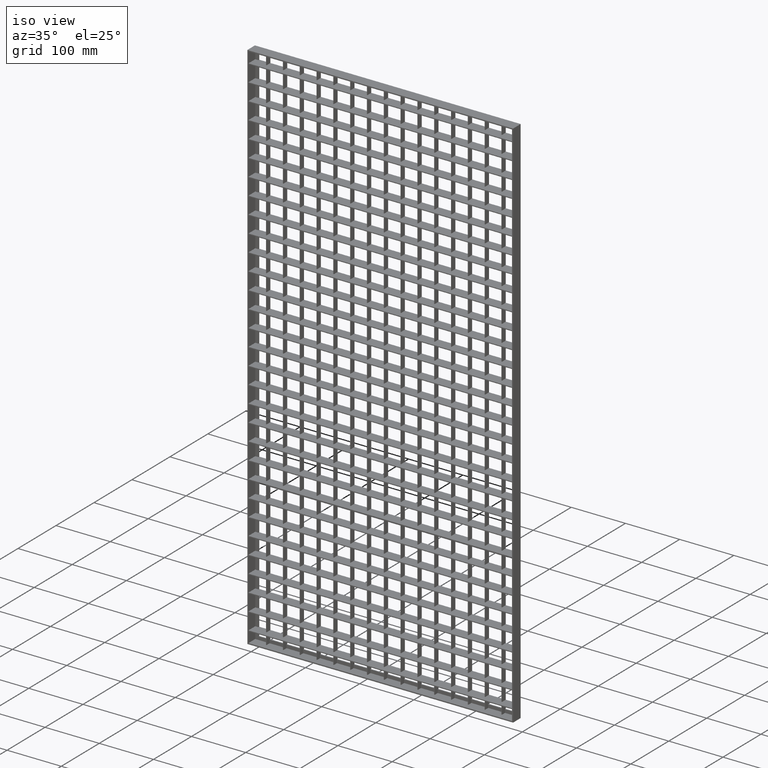
[diagram: clean part render]
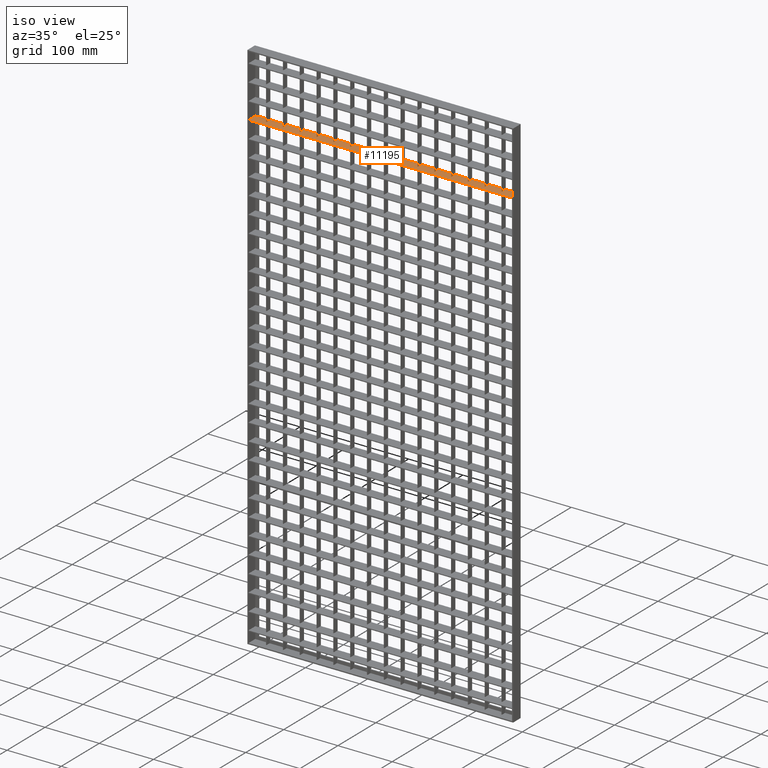
[diagram: same view with one face highlighted and labeled with its STEP entity id]
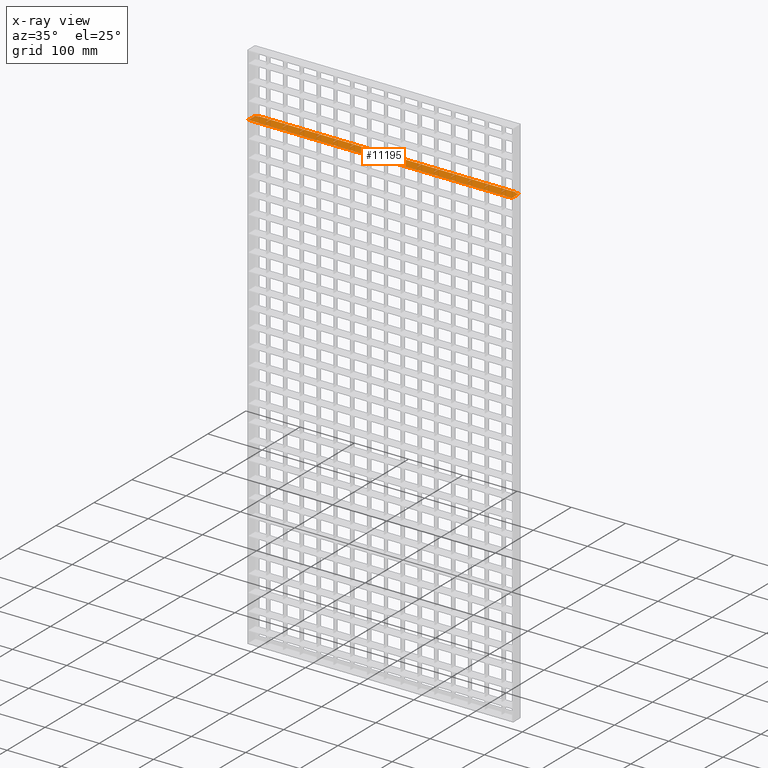
[diagram: x-ray of the same camera — body ghosted, the highlighted face saturated]
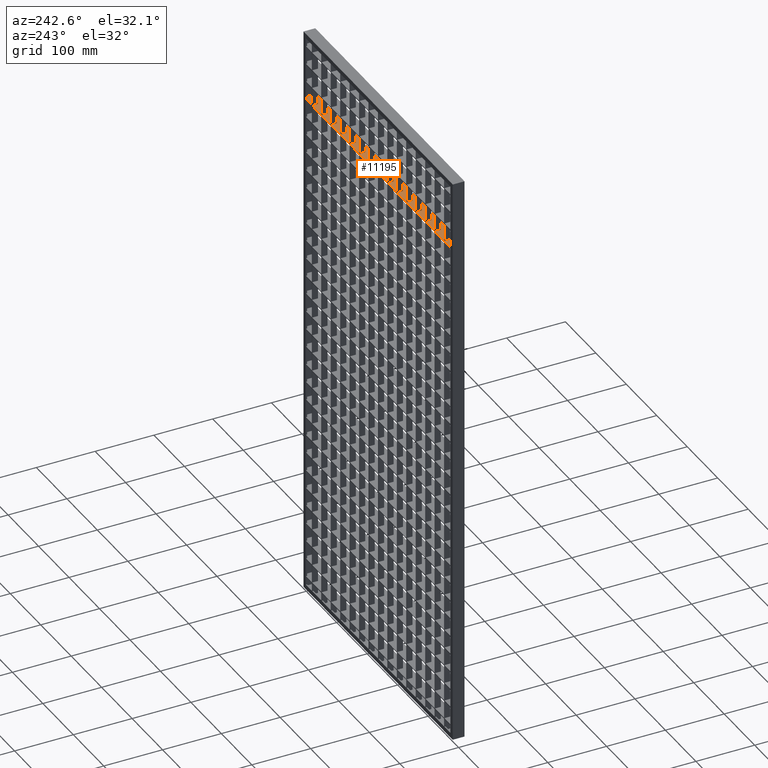
[diagram: same view with one face highlighted and labeled with its STEP entity id]
A machine part, iso view. The second image highlights one B-rep face of the part: STEP entity #11195.
The next image is the same camera in x-ray: the body ghosted, the highlighted face saturated — about 0% of this face is hidden behind the body in this view.
A second angle (auxiliary view) of the same face is appended — the face is thin or edge-on in the first view.
In plain terms, the highlighted planar face has unit normal (0, 0, 1).
Its self-contained STEP definition (entity closure, byte-faithful):
#66 = LINE ( 'NONE', #1352, #61091 ) ;
#96 = LINE ( 'NONE', #55227, #38775 ) ;
#154 = EDGE_CURVE ( 'NONE', #3011, #3247, #58963, .T. ) ;
#226 = CARTESIAN_POINT ( 'NONE',  ( 337.5000000000000000, -9.999999999999849000, -116.2500000000001800 ) ) ;
#285 = CARTESIAN_POINT ( 'NONE',  ( 488.0000000000001100, -9.999999999999849000, -116.2500000000001800 ) ) ;
#354 = EDGE_CURVE ( 'NONE', #33933, #38068, #47777, .T. ) ;
#404 = CARTESIAN_POINT ( 'NONE',  ( 214.5000000000000300, -9.999999999999849000, -116.2500000000001800 ) ) ;
#761 = LINE ( 'NONE', #40805, #28284 ) ;
#849 = VERTEX_POINT ( 'NONE', #18802 ) ;
#1001 = VERTEX_POINT ( 'NONE', #25924 ) ;
#1289 = LINE ( 'NONE', #62619, #35708 ) ;
#1352 = CARTESIAN_POINT ( 'NONE',  ( 306.5000000000000000, -9.999999999999849000, -116.2500000000001800 ) ) ;
#1355 = VERTEX_POINT ( 'NONE', #66775 ) ;
#1635 = CARTESIAN_POINT ( 'NONE',  ( 430.5000000000000000, -9.999999999999849000, -116.2500000000001800 ) ) ;
#1902 = DIRECTION ( 'NONE',  ( -1.000000000000000000, -3.061616997868382600E-016, 0.0000000000000000000 ) ) ;
#1916 = VERTEX_POINT ( 'NONE', #7220 ) ;
#1917 = VECTOR ( 'NONE', #39881, 1000.000000000000000 ) ;
#1993 = CARTESIAN_POINT ( 'NONE',  ( 307.5000000000000000, 10.00000000000000200, -116.2500000000004100 ) ) ;
#2297 = VERTEX_POINT ( 'NONE', #70636 ) ;
#2717 = VECTOR ( 'NONE', #5899, 1000.000000000000000 ) ;
#2776 = CARTESIAN_POINT ( 'NONE',  ( 338.5000000000000000, 1.923612492644616800E-015, -116.2500000000004100 ) ) ;
#2880 = DIRECTION ( 'NONE',  ( 0.0000000000000000000, -1.000000000000000000, 0.0000000000000000000 ) ) ;
#3011 = VERTEX_POINT ( 'NONE', #34235 ) ;
#3160 = VECTOR ( 'NONE', #12920, 1000.000000000000000 ) ;
#3240 = DIRECTION ( 'NONE',  ( -1.000000000000000000, 0.0000000000000000000, 0.0000000000000000000 ) ) ;
#3247 = VERTEX_POINT ( 'NONE', #25079 ) ;
#3488 = ORIENTED_EDGE ( 'NONE', *, *, #53635, .T. ) ;
#3531 = DIRECTION ( 'NONE',  ( 1.000000000000000000, 3.061616997868381700E-016, -0.0000000000000000000 ) ) ;
#3753 = CARTESIAN_POINT ( 'NONE',  ( 399.4999999999999400, 10.00000000000012100, -116.2500000000001800 ) ) ;
#3786 = CARTESIAN_POINT ( 'NONE',  ( 90.50000000000002800, 10.00000000000002700, -116.2500000000001800 ) ) ;
#3804 = CARTESIAN_POINT ( 'NONE',  ( 2.000000000000001800, -10.00000000000000400, -116.2500000000001800 ) ) ;
#4022 = EDGE_CURVE ( 'NONE', #25722, #1001, #40357, .T. ) ;
#4027 = ORIENTED_EDGE ( 'NONE', *, *, #32074, .T. ) ;
#4175 = CARTESIAN_POINT ( 'NONE',  ( 430.5000000000000000, 2.229774192431455100E-015, -116.2500000000001800 ) ) ;
#4298 = VECTOR ( 'NONE', #69806, 1000.000000000000000 ) ;
#4321 = EDGE_CURVE ( 'NONE', #41509, #849, #57528, .T. ) ;
#4322 = EDGE_CURVE ( 'NONE', #59685, #13925, #761, .T. ) ;
#4414 = VERTEX_POINT ( 'NONE', #65220 ) ;
#4528 = LINE ( 'NONE', #21115, #54399 ) ;
#5039 = VECTOR ( 'NONE', #5463, 1000.000000000000000 ) ;
#5065 = CARTESIAN_POINT ( 'NONE',  ( 275.4999999999999400, 10.00000000000008300, -116.2500000000001800 ) ) ;
#5176 = ORIENTED_EDGE ( 'NONE', *, *, #24452, .T. ) ;
#5246 = VERTEX_POINT ( 'NONE', #62007 ) ;
#5281 = CARTESIAN_POINT ( 'NONE',  ( 151.4999999999999700, -9.999999999999849000, -116.2500000000001800 ) ) ;
#5368 = EDGE_CURVE ( 'NONE', #1001, #17634, #28168, .T. ) ;
#5463 = DIRECTION ( 'NONE',  ( -1.000000000000000000, 3.061616997868381700E-016, 0.0000000000000000000 ) ) ;
#5499 = CARTESIAN_POINT ( 'NONE',  ( 307.5000000000000000, 1.923612492644616800E-015, -116.2500000000004100 ) ) ;
#5652 = VECTOR ( 'NONE', #48286, 1000.000000000000000 ) ;
#5875 = ORIENTED_EDGE ( 'NONE', *, *, #354, .F. ) ;
#5899 = DIRECTION ( 'NONE',  ( 0.0000000000000000000, -1.000000000000000000, 0.0000000000000000000 ) ) ;
#5962 = DIRECTION ( 'NONE',  ( 0.0000000000000000000, 0.0000000000000000000, 1.000000000000000000 ) ) ;
#6363 = DIRECTION ( 'NONE',  ( -1.000000000000000000, -3.061616997868382600E-016, 0.0000000000000000000 ) ) ;
#6431 = VECTOR ( 'NONE', #70868, 1000.000000000000000 ) ;
#6518 = VERTEX_POINT ( 'NONE', #48362 ) ;
#6537 = CARTESIAN_POINT ( 'NONE',  ( 306.5000000000000000, 10.00000000000009200, -116.2500000000001800 ) ) ;
#6709 = DIRECTION ( 'NONE',  ( -1.000000000000000000, 3.061616997868381200E-016, 0.0000000000000000000 ) ) ;
#7109 = CARTESIAN_POINT ( 'NONE',  ( 276.4999999999999400, -9.999999999999849000, -116.2500000000001800 ) ) ;
#7220 = CARTESIAN_POINT ( 'NONE',  ( 28.50000000000002500, 10.00000000000000700, -116.2500000000001800 ) ) ;
#7403 = DIRECTION ( 'NONE',  ( 1.000000000000000000, 3.061616997868381200E-016, -0.0000000000000000000 ) ) ;
#7412 = EDGE_CURVE ( 'NONE', #44917, #14105, #35719, .T. ) ;
#7444 = CARTESIAN_POINT ( 'NONE',  ( 307.5000000000000000, -9.999999999999849000, -116.2500000000001800 ) ) ;
#7744 = ORIENTED_EDGE ( 'NONE', *, *, #43467, .F. ) ;
#7939 = VERTEX_POINT ( 'NONE', #24346 ) ;
#7989 = CARTESIAN_POINT ( 'NONE',  ( 89.50000000000000000, 10.00000000000000200, -116.2500000000001800 ) ) ;
#8013 = VECTOR ( 'NONE', #2880, 1000.000000000000000 ) ;
#8253 = VERTEX_POINT ( 'NONE', #5499 ) ;
#8380 = CARTESIAN_POINT ( 'NONE',  ( 245.5000000000000000, 10.00000000000007500, -116.2500000000001800 ) ) ;
#8395 = CARTESIAN_POINT ( 'NONE',  ( 508.0561711201316900, 10.00000000000015500, -116.2500000000001800 ) ) ;
#8545 = ORIENTED_EDGE ( 'NONE', *, *, #29519, .F. ) ;
#8560 = LINE ( 'NONE', #33262, #15452 ) ;
#8620 = VECTOR ( 'NONE', #55979, 1000.000000000000000 ) ;
#8635 = CARTESIAN_POINT ( 'NONE',  ( 244.5000000000000000, 10.00000000000000200, -116.2500000000004100 ) ) ;
#8644 = VERTEX_POINT ( 'NONE', #8380 ) ;
#8888 = VECTOR ( 'NONE', #26855, 1000.000000000000000 ) ;
#8961 = VERTEX_POINT ( 'NONE', #49169 ) ;
#8966 = CARTESIAN_POINT ( 'NONE',  ( 338.5000000000000000, 10.00000000000000200, -116.2500000000004100 ) ) ;
#8995 = EDGE_CURVE ( 'NONE', #34004, #45563, #37981, .T. ) ;
#9236 = VECTOR ( 'NONE', #23827, 1000.000000000000000 ) ;
#9242 = LINE ( 'NONE', #70820, #48805 ) ;
#9249 = DIRECTION ( 'NONE',  ( 0.0000000000000000000, -1.000000000000000000, 0.0000000000000000000 ) ) ;
#9516 = DIRECTION ( 'NONE',  ( -1.000000000000000000, 3.061616997868381700E-016, 0.0000000000000000000 ) ) ;
#9560 = VERTEX_POINT ( 'NONE', #1993 ) ;
#9592 = DIRECTION ( 'NONE',  ( -1.000000000000000000, 0.0000000000000000000, 0.0000000000000000000 ) ) ;
#9722 = LINE ( 'NONE', #56500, #19218 ) ;
#9756 = VERTEX_POINT ( 'NONE', #7989 ) ;
#9794 = VECTOR ( 'NONE', #40021, 1000.000000000000000 ) ;
#9856 = ORIENTED_EDGE ( 'NONE', *, *, #28978, .T. ) ;
#9950 = VECTOR ( 'NONE', #22806, 1000.000000000000000 ) ;
#10018 = CARTESIAN_POINT ( 'NONE',  ( 245.5000000000000000, 1.734723475976807100E-015, -116.2500000000001800 ) ) ;
#10086 = LINE ( 'NONE', #285, #28972 ) ;
#10484 = CARTESIAN_POINT ( 'NONE',  ( 28.49999999999997200, 1.734723475976807100E-015, -116.2500000000001800 ) ) ;
#10709 = DIRECTION ( 'NONE',  ( 1.000000000000000000, 3.061616997868381200E-016, -0.0000000000000000000 ) ) ;
#10721 = DIRECTION ( 'NONE',  ( -0.0000000000000000000, -1.000000000000000000, 0.0000000000000000000 ) ) ;
#10842 = CARTESIAN_POINT ( 'NONE',  ( 368.5000000000000600, 10.00000000000011200, -116.2500000000001800 ) ) ;
#11003 = CARTESIAN_POINT ( 'NONE',  ( 508.0561711201316900, 10.00000000000015500, -116.2500000000001800 ) ) ;
#11017 = CARTESIAN_POINT ( 'NONE',  ( 508.0561711201316900, 1.491862189340054100E-013, -116.2500000000001800 ) ) ;
#11195 = ADVANCED_FACE ( 'NONE', ( #47107 ), #71369, .T. ) ;
#11368 = CARTESIAN_POINT ( 'NONE',  ( 368.5000000000000600, 2.229774192431455100E-015, -116.2500000000004100 ) ) ;
#11381 = DIRECTION ( 'NONE',  ( 0.0000000000000000000, -1.000000000000000000, 0.0000000000000000000 ) ) ;
#11609 = LINE ( 'NONE', #43200, #6431 ) ;
#11745 = DIRECTION ( 'NONE',  ( 1.000000000000000000, 3.061616997868381700E-016, -0.0000000000000000000 ) ) ;
#12221 = VECTOR ( 'NONE', #46309, 1000.000000000000000 ) ;
#12293 = ORIENTED_EDGE ( 'NONE', *, *, #65976, .T. ) ;
#12335 = ORIENTED_EDGE ( 'NONE', *, *, #28984, .T. ) ;
#12539 = ORIENTED_EDGE ( 'NONE', *, *, #7412, .T. ) ;
#12554 = DIRECTION ( 'NONE',  ( 0.0000000000000000000, -1.000000000000000000, 0.0000000000000000000 ) ) ;
#12819 = VERTEX_POINT ( 'NONE', #21442 ) ;
#12849 = DIRECTION ( 'NONE',  ( -0.0000000000000000000, 1.000000000000000000, 0.0000000000000000000 ) ) ;
#12920 = DIRECTION ( 'NONE',  ( -1.000000000000000000, -3.061616997868382600E-016, 0.0000000000000000000 ) ) ;
#12991 = CARTESIAN_POINT ( 'NONE',  ( 508.0561711201316900, -9.999999999999849000, -116.2500000000001800 ) ) ;
#12998 = CARTESIAN_POINT ( 'NONE',  ( 182.5000000000000000, 10.00000000000000200, -116.2500000000004100 ) ) ;
#13309 = ORIENTED_EDGE ( 'NONE', *, *, #69955, .F. ) ;
#13475 = CARTESIAN_POINT ( 'NONE',  ( 431.5000000000000000, -9.999999999999849000, -116.2500000000001800 ) ) ;
#13503 = VECTOR ( 'NONE', #49704, 1000.000000000000000 ) ;
#13518 = EDGE_CURVE ( 'NONE', #16266, #47125, #60110, .T. ) ;
#13719 = CARTESIAN_POINT ( 'NONE',  ( 28.49999999999997200, -9.999999999999849000, -116.2500000000001800 ) ) ;
#13925 = VERTEX_POINT ( 'NONE', #58303 ) ;
#13988 = VERTEX_POINT ( 'NONE', #20113 ) ;
#14105 = VERTEX_POINT ( 'NONE', #37132 ) ;
#15046 = VECTOR ( 'NONE', #11381, 1000.000000000000000 ) ;
#15452 = VECTOR ( 'NONE', #38299, 1000.000000000000000 ) ;
#15814 = VECTOR ( 'NONE', #52410, 1000.000000000000000 ) ;
#16179 = ORIENTED_EDGE ( 'NONE', *, *, #50127, .F. ) ;
#16266 = VERTEX_POINT ( 'NONE', #35106 ) ;
#16343 = CARTESIAN_POINT ( 'NONE',  ( 245.5000000000000000, -9.999999999999849000, -116.2500000000001800 ) ) ;
#16642 = DIRECTION ( 'NONE',  ( 0.0000000000000000000, -1.000000000000000000, 0.0000000000000000000 ) ) ;
#16921 = LINE ( 'NONE', #52466, #20358 ) ;
#16922 = EDGE_CURVE ( 'NONE', #38281, #13988, #23416, .T. ) ;
#17318 = ORIENTED_EDGE ( 'NONE', *, *, #61313, .T. ) ;
#17355 = ORIENTED_EDGE ( 'NONE', *, *, #48513, .T. ) ;
#17565 = VECTOR ( 'NONE', #31458, 1000.000000000000000 ) ;
#17634 = VERTEX_POINT ( 'NONE', #41100 ) ;
#17803 = LINE ( 'NONE', #40077, #3160 ) ;
#17875 = ORIENTED_EDGE ( 'NONE', *, *, #26034, .F. ) ;
#18203 = CARTESIAN_POINT ( 'NONE',  ( 59.50000000000000000, 1.734723475976807100E-015, -116.2500000000001800 ) ) ;
#18228 = ORIENTED_EDGE ( 'NONE', *, *, #48355, .T. ) ;
#18289 = VECTOR ( 'NONE', #61457, 1000.000000000000000 ) ;
#18389 = EDGE_CURVE ( 'NONE', #17634, #5246, #29137, .T. ) ;
#18555 = ORIENTED_EDGE ( 'NONE', *, *, #23323, .T. ) ;
#18802 = CARTESIAN_POINT ( 'NONE',  ( 152.5000000000000300, 10.00000000000004600, -116.2500000000001800 ) ) ;
#18990 = LINE ( 'NONE', #27881, #42169 ) ;
#19081 = DIRECTION ( 'NONE',  ( -0.0000000000000000000, 1.000000000000000000, 0.0000000000000000000 ) ) ;
#19088 = LINE ( 'NONE', #35144, #28486 ) ;
#19208 = ORIENTED_EDGE ( 'NONE', *, *, #38122, .T. ) ;
#19218 = VECTOR ( 'NONE', #50527, 1000.000000000000000 ) ;
#19473 = DIRECTION ( 'NONE',  ( -1.000000000000000000, -3.061616997868382600E-016, 0.0000000000000000000 ) ) ;
#19800 = ORIENTED_EDGE ( 'NONE', *, *, #38321, .F. ) ;
#19841 = LINE ( 'NONE', #59295, #64512 ) ;
#19891 = LINE ( 'NONE', #55745, #32533 ) ;
#20113 = CARTESIAN_POINT ( 'NONE',  ( 430.5000000000000000, 10.00000000000013000, -116.2500000000001800 ) ) ;
#20285 = VECTOR ( 'NONE', #3240, 1000.000000000000000 ) ;
#20358 = VECTOR ( 'NONE', #30593, 1000.000000000000000 ) ;
#20380 = CARTESIAN_POINT ( 'NONE',  ( 462.5000000000000000, -9.999999999999849000, -116.2500000000001800 ) ) ;
#20540 = VERTEX_POINT ( 'NONE', #63760 ) ;
#20577 = VECTOR ( 'NONE', #65826, 1000.000000000000000 ) ;
#20736 = LINE ( 'NONE', #46829, #67236 ) ;
#20879 = EDGE_CURVE ( 'NONE', #33315, #40284, #18990, .T. ) ;
#20885 = LINE ( 'NONE', #7109, #37961 ) ;
#21115 = CARTESIAN_POINT ( 'NONE',  ( 121.5000000000000000, -9.999999999999849000, -116.2500000000001800 ) ) ;
#21160 = ORIENTED_EDGE ( 'NONE', *, *, #32296, .T. ) ;
#21382 = DIRECTION ( 'NONE',  ( 1.000000000000000000, 0.0000000000000000000, -0.0000000000000000000 ) ) ;
#21400 = EDGE_CURVE ( 'NONE', #37545, #28957, #24041, .T. ) ;
#21420 = ORIENTED_EDGE ( 'NONE', *, *, #47836, .F. ) ;
#21442 = CARTESIAN_POINT ( 'NONE',  ( 121.5000000000000000, 10.00000000000003700, -116.2500000000001800 ) ) ;
#21633 = CARTESIAN_POINT ( 'NONE',  ( 508.0561711201316900, -9.999999999999849000, -116.2500000000001800 ) ) ;
#21657 = VECTOR ( 'NONE', #6363, 1000.000000000000000 ) ;
#21669 = VERTEX_POINT ( 'NONE', #59554 ) ;
#22037 = LINE ( 'NONE', #31645, #40098 ) ;
#22413 = VECTOR ( 'NONE', #28030, 1000.000000000000000 ) ;
#22806 = DIRECTION ( 'NONE',  ( -0.0000000000000000000, 1.000000000000000000, 0.0000000000000000000 ) ) ;
#23053 = ORIENTED_EDGE ( 'NONE', *, *, #67217, .F. ) ;
#23110 = DIRECTION ( 'NONE',  ( 0.0000000000000000000, -1.000000000000000000, 0.0000000000000000000 ) ) ;
#23250 = LINE ( 'NONE', #42148, #24088 ) ;
#23323 = EDGE_CURVE ( 'NONE', #58364, #25722, #69270, .T. ) ;
#23375 = ORIENTED_EDGE ( 'NONE', *, *, #63979, .F. ) ;
#23416 = LINE ( 'NONE', #1635, #12221 ) ;
#23529 = EDGE_CURVE ( 'NONE', #47807, #12819, #11609, .T. ) ;
#23602 = DIRECTION ( 'NONE',  ( -1.000000000000000000, -3.061616997868382600E-016, 0.0000000000000000000 ) ) ;
#23827 = DIRECTION ( 'NONE',  ( -0.0000000000000000000, 1.000000000000000000, 0.0000000000000000000 ) ) ;
#23867 = CARTESIAN_POINT ( 'NONE',  ( 369.5000000000000600, -9.999999999999849000, -116.2500000000001800 ) ) ;
#23921 = CARTESIAN_POINT ( 'NONE',  ( 90.50000000000002800, -9.999999999999849000, -116.2500000000001800 ) ) ;
#23951 = DIRECTION ( 'NONE',  ( 0.0000000000000000000, -1.000000000000000000, 0.0000000000000000000 ) ) ;
#23960 = DIRECTION ( 'NONE',  ( -0.0000000000000000000, 1.000000000000000000, 0.0000000000000000000 ) ) ;
#24041 = LINE ( 'NONE', #63699, #35189 ) ;
#24088 = VECTOR ( 'NONE', #9249, 1000.000000000000000 ) ;
#24159 = EDGE_CURVE ( 'NONE', #29501, #33933, #19891, .T. ) ;
#24346 = CARTESIAN_POINT ( 'NONE',  ( 151.4999999999999700, 1.858459042889412100E-015, -116.2500000000001800 ) ) ;
#24452 = EDGE_CURVE ( 'NONE', #40692, #25430, #33660, .T. ) ;
#24585 = LINE ( 'NONE', #226, #9950 ) ;
#24702 = EDGE_CURVE ( 'NONE', #25430, #55751, #34465, .T. ) ;
#24706 = VECTOR ( 'NONE', #35953, 1000.000000000000000 ) ;
#24890 = ORIENTED_EDGE ( 'NONE', *, *, #4322, .F. ) ;
#25021 = EDGE_CURVE ( 'NONE', #9560, #8253, #42085, .T. ) ;
#25079 = CARTESIAN_POINT ( 'NONE',  ( 90.50000000000002800, 1.734723475976807100E-015, -116.2500000000001800 ) ) ;
#25430 = VERTEX_POINT ( 'NONE', #71079 ) ;
#25523 = DIRECTION ( 'NONE',  ( 1.000000000000000000, 3.061616997868381200E-016, -0.0000000000000000000 ) ) ;
#25628 = VECTOR ( 'NONE', #37986, 1000.000000000000000 ) ;
#25693 = ORIENTED_EDGE ( 'NONE', *, *, #61186, .F. ) ;
#25722 = VERTEX_POINT ( 'NONE', #41928 ) ;
#25924 = CARTESIAN_POINT ( 'NONE',  ( 482.0000000000002300, 10.00000000000000200, -116.2500000000001800 ) ) ;
#26031 = VECTOR ( 'NONE', #38385, 1000.000000000000000 ) ;
#26034 = EDGE_CURVE ( 'NONE', #55268, #849, #8560, .T. ) ;
#26109 = DIRECTION ( 'NONE',  ( 0.0000000000000000000, -1.000000000000000000, 0.0000000000000000000 ) ) ;
#26315 = ORIENTED_EDGE ( 'NONE', *, *, #24702, .T. ) ;
#26321 = DIRECTION ( 'NONE',  ( -1.000000000000000000, -3.061616997868382600E-016, 0.0000000000000000000 ) ) ;
#26855 = DIRECTION ( 'NONE',  ( -1.000000000000000000, -3.061616997868382600E-016, 0.0000000000000000000 ) ) ;
#26869 = EDGE_CURVE ( 'NONE', #62229, #1916, #47102, .T. ) ;
#26990 = CARTESIAN_POINT ( 'NONE',  ( 508.0561711201316900, 10.00000000000015500, -116.2500000000001800 ) ) ;
#27009 = LINE ( 'NONE', #63548, #63194 ) ;
#27394 = EDGE_CURVE ( 'NONE', #8253, #61614, #16921, .T. ) ;
#27803 = DIRECTION ( 'NONE',  ( -1.000000000000000000, -3.061616997868382600E-016, 0.0000000000000000000 ) ) ;
#27825 = CARTESIAN_POINT ( 'NONE',  ( 58.50000000000000000, 10.00000000000000200, -116.2500000000001800 ) ) ;
#27881 = CARTESIAN_POINT ( 'NONE',  ( 508.0561711201316900, -5.030698080332740600E-014, -116.2500000000001800 ) ) ;
#28030 = DIRECTION ( 'NONE',  ( -0.0000000000000000000, 1.000000000000000000, 0.0000000000000000000 ) ) ;
#28040 = VERTEX_POINT ( 'NONE', #65491 ) ;
#28117 = ORIENTED_EDGE ( 'NONE', *, *, #36528, .F. ) ;
#28168 = LINE ( 'NONE', #29308, #29911 ) ;
#28241 = EDGE_CURVE ( 'NONE', #28515, #33315, #53707, .T. ) ;
#28281 = ORIENTED_EDGE ( 'NONE', *, *, #23529, .T. ) ;
#28284 = VECTOR ( 'NONE', #7403, 1000.000000000000000 ) ;
#28486 = VECTOR ( 'NONE', #19081, 1000.000000000000000 ) ;
#28515 = VERTEX_POINT ( 'NONE', #8966 ) ;
#28542 = LINE ( 'NONE', #33361, #48324 ) ;
#28657 = EDGE_CURVE ( 'NONE', #55751, #8644, #33051, .T. ) ;
#28747 = CARTESIAN_POINT ( 'NONE',  ( 461.5000000000000000, -9.999999999999849000, -116.2500000000001800 ) ) ;
#28822 = ORIENTED_EDGE ( 'NONE', *, *, #27394, .T. ) ;
#28866 = EDGE_CURVE ( 'NONE', #47226, #45609, #53584, .T. ) ;
#28957 = VERTEX_POINT ( 'NONE', #52165 ) ;
#28972 = VECTOR ( 'NONE', #50256, 1000.000000000000000 ) ;
#28978 = EDGE_CURVE ( 'NONE', #47125, #63425, #51890, .T. ) ;
#28984 = EDGE_CURVE ( 'NONE', #44934, #64410, #68230, .T. ) ;
#29137 = LINE ( 'NONE', #20380, #60928 ) ;
#29308 = CARTESIAN_POINT ( 'NONE',  ( 508.0561711201316900, 10.00000000000015500, -116.2500000000001800 ) ) ;
#29395 = VECTOR ( 'NONE', #67243, 1000.000000000000000 ) ;
#29501 = VERTEX_POINT ( 'NONE', #27825 ) ;
#29513 = LINE ( 'NONE', #71312, #8888 ) ;
#29519 = EDGE_CURVE ( 'NONE', #37545, #67723, #28542, .T. ) ;
#29754 = EDGE_CURVE ( 'NONE', #13988, #20540, #53220, .T. ) ;
#29911 = VECTOR ( 'NONE', #1902, 1000.000000000000000 ) ;
#29987 = LINE ( 'NONE', #39921, #39423 ) ;
#30223 = CARTESIAN_POINT ( 'NONE',  ( 337.5000000000000000, 2.229774192431455100E-015, -116.2500000000004100 ) ) ;
#30593 = DIRECTION ( 'NONE',  ( -1.000000000000000000, 3.061616997868381200E-016, 0.0000000000000000000 ) ) ;
#30598 = VECTOR ( 'NONE', #9592, 1000.000000000000000 ) ;
#30882 = CARTESIAN_POINT ( 'NONE',  ( 369.5000000000000600, 10.00000000000000200, -116.2500000000004100 ) ) ;
#31114 = CARTESIAN_POINT ( 'NONE',  ( 2.000000000000003600, 8.000000000000001800, -116.2500000000001800 ) ) ;
#31458 = DIRECTION ( 'NONE',  ( -0.0000000000000000000, 1.000000000000000000, 0.0000000000000000000 ) ) ;
#31627 = CARTESIAN_POINT ( 'NONE',  ( 488.0000000000001100, -10.00000000000000500, -116.2500000000001800 ) ) ;
#31645 = CARTESIAN_POINT ( 'NONE',  ( 508.0561711201316900, 10.00000000000015500, -116.2500000000001800 ) ) ;
#31866 = LINE ( 'NONE', #404, #22413 ) ;
#32074 = EDGE_CURVE ( 'NONE', #68664, #64551, #65925, .T. ) ;
#32296 = EDGE_CURVE ( 'NONE', #64410, #38281, #34925, .T. ) ;
#32393 = LINE ( 'NONE', #38330, #47805 ) ;
#32533 = VECTOR ( 'NONE', #16642, 1000.000000000000000 ) ;
#32655 = LINE ( 'NONE', #11017, #20577 ) ;
#32724 = CARTESIAN_POINT ( 'NONE',  ( 7.999999999999996400, 8.000000000000001800, -116.2500000000001800 ) ) ;
#32965 = LINE ( 'NONE', #11003, #26031 ) ;
#33051 = LINE ( 'NONE', #37057, #42456 ) ;
#33262 = CARTESIAN_POINT ( 'NONE',  ( 152.4999999999999700, -9.999999999999849000, -116.2500000000001800 ) ) ;
#33315 = VERTEX_POINT ( 'NONE', #2776 ) ;
#33361 = CARTESIAN_POINT ( 'NONE',  ( 213.5000000000000300, -9.999999999999849000, -116.2500000000001800 ) ) ;
#33660 = LINE ( 'NONE', #50647, #29395 ) ;
#33680 = VERTEX_POINT ( 'NONE', #10842 ) ;
#33933 = VERTEX_POINT ( 'NONE', #57895 ) ;
#34004 = VERTEX_POINT ( 'NONE', #8635 ) ;
#34007 = VECTOR ( 'NONE', #3531, 1000.000000000000000 ) ;
#34235 = CARTESIAN_POINT ( 'NONE',  ( 89.49999999999997200, 1.958391891850295600E-015, -116.2500000000001800 ) ) ;
#34440 = EDGE_CURVE ( 'NONE', #29501, #1916, #54307, .T. ) ;
#34465 = LINE ( 'NONE', #51604, #4298 ) ;
#34482 = CARTESIAN_POINT ( 'NONE',  ( 276.4999999999999400, 1.923612492644616800E-015, -116.2500000000004100 ) ) ;
#34552 = EDGE_CURVE ( 'NONE', #28040, #40692, #20885, .T. ) ;
#34808 = LINE ( 'NONE', #60912, #47683 ) ;
#34925 = LINE ( 'NONE', #69007, #5652 ) ;
#35106 = CARTESIAN_POINT ( 'NONE',  ( 400.4999999999999400, 1.923612492644616800E-015, -116.2500000000001800 ) ) ;
#35144 = CARTESIAN_POINT ( 'NONE',  ( 368.5000000000000600, -9.999999999999849000, -116.2500000000001800 ) ) ;
#35189 = VECTOR ( 'NONE', #63005, 1000.000000000000000 ) ;
#35708 = VECTOR ( 'NONE', #37326, 1000.000000000000000 ) ;
#35719 = LINE ( 'NONE', #31114, #20285 ) ;
#35953 = DIRECTION ( 'NONE',  ( -1.000000000000000000, -3.061616997868382600E-016, 0.0000000000000000000 ) ) ;
#36139 = EDGE_CURVE ( 'NONE', #57469, #28040, #59737, .T. ) ;
#36176 = ORIENTED_EDGE ( 'NONE', *, *, #25021, .T. ) ;
#36209 = ORIENTED_EDGE ( 'NONE', *, *, #28657, .T. ) ;
#36413 = VECTOR ( 'NONE', #23602, 1000.000000000000000 ) ;
#36528 = EDGE_CURVE ( 'NONE', #38068, #62627, #70002, .T. ) ;
#36814 = ORIENTED_EDGE ( 'NONE', *, *, #29754, .T. ) ;
#36942 = ORIENTED_EDGE ( 'NONE', *, *, #61627, .T. ) ;
#37057 = CARTESIAN_POINT ( 'NONE',  ( 508.0561711201316900, 10.00000000000015500, -116.2500000000001800 ) ) ;
#37132 = CARTESIAN_POINT ( 'NONE',  ( 2.000000000000003600, 8.000000000000001800, -116.2500000000001800 ) ) ;
#37214 = ORIENTED_EDGE ( 'NONE', *, *, #63043, .T. ) ;
#37326 = DIRECTION ( 'NONE',  ( 0.0000000000000000000, -1.000000000000000000, 0.0000000000000000000 ) ) ;
#37521 = VECTOR ( 'NONE', #68037, 1000.000000000000000 ) ;
#37545 = VERTEX_POINT ( 'NONE', #68799 ) ;
#37590 = EDGE_CURVE ( 'NONE', #69075, #33680, #19088, .T. ) ;
#37961 = VECTOR ( 'NONE', #23951, 1000.000000000000000 ) ;
#37981 = LINE ( 'NONE', #60003, #21657 ) ;
#37986 = DIRECTION ( 'NONE',  ( 0.0000000000000000000, -1.000000000000000000, 0.0000000000000000000 ) ) ;
#38068 = VERTEX_POINT ( 'NONE', #18203 ) ;
#38122 = EDGE_CURVE ( 'NONE', #61614, #57469, #66, .T. ) ;
#38194 = CARTESIAN_POINT ( 'NONE',  ( 482.0000000000001700, 8.000000000000001800, -116.2500000000001800 ) ) ;
#38281 = VERTEX_POINT ( 'NONE', #4175 ) ;
#38299 = DIRECTION ( 'NONE',  ( -0.0000000000000000000, 1.000000000000000000, 0.0000000000000000000 ) ) ;
#38321 = EDGE_CURVE ( 'NONE', #4414, #66110, #23250, .T. ) ;
#38330 = CARTESIAN_POINT ( 'NONE',  ( 7.999999999999996400, 8.000000000000001800, -116.2500000000001800 ) ) ;
#38385 = DIRECTION ( 'NONE',  ( -1.000000000000000000, -3.061616997868382600E-016, 0.0000000000000000000 ) ) ;
#38447 = LINE ( 'NONE', #49240, #13503 ) ;
#38582 = ORIENTED_EDGE ( 'NONE', *, *, #43378, .T. ) ;
#38724 = ORIENTED_EDGE ( 'NONE', *, *, #8995, .T. ) ;
#38775 = VECTOR ( 'NONE', #60779, 1000.000000000000000 ) ;
#38798 = ORIENTED_EDGE ( 'NONE', *, *, #46230, .T. ) ;
#38845 = CARTESIAN_POINT ( 'NONE',  ( 244.5000000000000000, -9.999999999999849000, -116.2500000000001800 ) ) ;
#39202 = ORIENTED_EDGE ( 'NONE', *, *, #46135, .T. ) ;
#39274 = VECTOR ( 'NONE', #12554, 1000.000000000000000 ) ;
#39314 = ORIENTED_EDGE ( 'NONE', *, *, #54972, .T. ) ;
#39344 = VECTOR ( 'NONE', #69897, 1000.000000000000000 ) ;
#39376 = CARTESIAN_POINT ( 'NONE',  ( 27.49999999999996800, 2.058324740811204000E-015, -116.2500000000001800 ) ) ;
#39413 = ORIENTED_EDGE ( 'NONE', *, *, #42632, .F. ) ;
#39423 = VECTOR ( 'NONE', #23110, 1000.000000000000000 ) ;
#39607 = CARTESIAN_POINT ( 'NONE',  ( 306.5000000000000000, 2.229774192431455100E-015, -116.2500000000004100 ) ) ;
#39881 = DIRECTION ( 'NONE',  ( -0.0000000000000000000, 1.000000000000000000, 0.0000000000000000000 ) ) ;
#39921 = CARTESIAN_POINT ( 'NONE',  ( 120.5000000000000000, -9.999999999999849000, -116.2500000000001800 ) ) ;
#39932 = ORIENTED_EDGE ( 'NONE', *, *, #26869, .F. ) ;
#40021 = DIRECTION ( 'NONE',  ( -1.000000000000000000, -3.061616997868382600E-016, 0.0000000000000000000 ) ) ;
#40077 = CARTESIAN_POINT ( 'NONE',  ( 508.0561711201316900, 10.00000000000015500, -116.2500000000001800 ) ) ;
#40098 = VECTOR ( 'NONE', #26321, 1000.000000000000000 ) ;
#40099 = CARTESIAN_POINT ( 'NONE',  ( 508.0561711201316900, 1.301042606982605300E-013, -116.2500000000001800 ) ) ;
#40142 = ORIENTED_EDGE ( 'NONE', *, *, #53174, .F. ) ;
#40284 = VERTEX_POINT ( 'NONE', #30223 ) ;
#40331 = CARTESIAN_POINT ( 'NONE',  ( 508.0561711201316900, 10.00000000000015500, -116.2500000000001800 ) ) ;
#40357 = LINE ( 'NONE', #38194, #60977 ) ;
#40410 = EDGE_LOOP ( 'NONE', ( #64503, #71354, #39314, #17355, #67218, #12335, #21160, #43499, #36814, #17318, #63185, #9856, #62453, #4027, #12293, #61172, #37214, #47052, #65555, #36942, #18228, #36176, #28822, #19208, #44501, #71045, #5176, #26315, #36209, #59930, #21420, #39413, #38724, #67362, #13309, #8545, #64308, #62661, #24890, #23375, #69820, #17875, #53674, #61901, #28281, #66633, #23053, #40142, #39202, #53896, #67408, #7744, #63555, #28117, #5875, #67747, #56241, #39932, #16179, #19800, #38582, #38798, #12539, #3488, #58569, #25693, #18555, #42377 ) ) ;
#40692 = VERTEX_POINT ( 'NONE', #34482 ) ;
#40805 = CARTESIAN_POINT ( 'NONE',  ( 508.0561711201316900, 1.006139616066548100E-013, -116.2500000000001800 ) ) ;
#41100 = CARTESIAN_POINT ( 'NONE',  ( 462.5000000000000000, 10.00000000000000200, -116.2500000000001800 ) ) ;
#41200 = CARTESIAN_POINT ( 'NONE',  ( 120.5000000000000000, 10.00000000000000200, -116.2500000000004100 ) ) ;
#41509 = VERTEX_POINT ( 'NONE', #12998 ) ;
#41928 = CARTESIAN_POINT ( 'NONE',  ( 482.0000000000001700, 8.000000000000001800, -116.2500000000001800 ) ) ;
#42085 = LINE ( 'NONE', #7444, #8620 ) ;
#42148 = CARTESIAN_POINT ( 'NONE',  ( 27.49999999999996800, -9.999999999999849000, -116.2500000000001800 ) ) ;
#42169 = VECTOR ( 'NONE', #6709, 1000.000000000000000 ) ;
#42181 = CARTESIAN_POINT ( 'NONE',  ( 508.0561711201316900, -1.214306433183765000E-014, -116.2500000000001800 ) ) ;
#42266 = CARTESIAN_POINT ( 'NONE',  ( 59.50000000000005000, 10.00000000000001800, -116.2500000000001800 ) ) ;
#42330 = CARTESIAN_POINT ( 'NONE',  ( 151.5000000000000000, 10.00000000000000200, -116.2500000000004100 ) ) ;
#42377 = ORIENTED_EDGE ( 'NONE', *, *, #4022, .T. ) ;
#42456 = VECTOR ( 'NONE', #70213, 1000.000000000000000 ) ;
#42632 = EDGE_CURVE ( 'NONE', #34004, #21669, #57747, .T. ) ;
#42885 = VECTOR ( 'NONE', #12849, 1000.000000000000000 ) ;
#43200 = CARTESIAN_POINT ( 'NONE',  ( 508.0561711201316900, 10.00000000000015500, -116.2500000000001800 ) ) ;
#43265 = EDGE_CURVE ( 'NONE', #13925, #28957, #62989, .T. ) ;
#43378 = EDGE_CURVE ( 'NONE', #4414, #67918, #69749, .T. ) ;
#43467 = EDGE_CURVE ( 'NONE', #9756, #3011, #20736, .T. ) ;
#43499 = ORIENTED_EDGE ( 'NONE', *, *, #16922, .T. ) ;
#43852 = DIRECTION ( 'NONE',  ( 1.000000000000000000, 3.061616997868381200E-016, -0.0000000000000000000 ) ) ;
#44263 = DIRECTION ( 'NONE',  ( -1.000000000000000000, -3.061616997868382600E-016, 0.0000000000000000000 ) ) ;
#44288 = CARTESIAN_POINT ( 'NONE',  ( 338.5000000000000000, -9.999999999999849000, -116.2500000000001800 ) ) ;
#44501 = ORIENTED_EDGE ( 'NONE', *, *, #36139, .T. ) ;
#44917 = VERTEX_POINT ( 'NONE', #32724 ) ;
#44934 = VERTEX_POINT ( 'NONE', #71159 ) ;
#44958 = EDGE_CURVE ( 'NONE', #47807, #7939, #68686, .T. ) ;
#45107 = DIRECTION ( 'NONE',  ( 0.0000000000000000000, -1.000000000000000000, 0.0000000000000000000 ) ) ;
#45508 = EDGE_CURVE ( 'NONE', #57908, #8644, #46217, .T. ) ;
#45563 = VERTEX_POINT ( 'NONE', #47558 ) ;
#45609 = VERTEX_POINT ( 'NONE', #3804 ) ;
#45771 = LINE ( 'NONE', #28747, #18289 ) ;
#46135 = EDGE_CURVE ( 'NONE', #58293, #59472, #22037, .T. ) ;
#46217 = LINE ( 'NONE', #16343, #39344 ) ;
#46230 = EDGE_CURVE ( 'NONE', #67918, #44917, #32393, .T. ) ;
#46309 = DIRECTION ( 'NONE',  ( -0.0000000000000000000, 1.000000000000000000, 0.0000000000000000000 ) ) ;
#46371 = CARTESIAN_POINT ( 'NONE',  ( 399.4999999999999400, -9.999999999999849000, -116.2500000000001800 ) ) ;
#46829 = CARTESIAN_POINT ( 'NONE',  ( 89.50000000000002800, -9.999999999999849000, -116.2500000000001800 ) ) ;
#46894 = CARTESIAN_POINT ( 'NONE',  ( 431.5000000000000000, 1.923612492644616800E-015, -116.2500000000001800 ) ) ;
#46975 = LINE ( 'NONE', #56466, #37521 ) ;
#47052 = ORIENTED_EDGE ( 'NONE', *, *, #28241, .T. ) ;
#47102 = LINE ( 'NONE', #13719, #9236 ) ;
#47107 = FACE_OUTER_BOUND ( 'NONE', #40410, .T. ) ;
#47125 = VERTEX_POINT ( 'NONE', #69134 ) ;
#47226 = VERTEX_POINT ( 'NONE', #31627 ) ;
#47393 = EDGE_CURVE ( 'NONE', #7939, #55268, #34808, .T. ) ;
#47558 = CARTESIAN_POINT ( 'NONE',  ( 214.5000000000000300, 10.00000000000006400, -116.2500000000001800 ) ) ;
#47683 = VECTOR ( 'NONE', #10709, 1000.000000000000000 ) ;
#47777 = LINE ( 'NONE', #68919, #34007 ) ;
#47805 = VECTOR ( 'NONE', #10721, 1000.000000000000000 ) ;
#47807 = VERTEX_POINT ( 'NONE', #42330 ) ;
#47836 = EDGE_CURVE ( 'NONE', #21669, #57908, #27009, .T. ) ;
#48027 = CARTESIAN_POINT ( 'NONE',  ( 245.0000000000000000, 8.000000000000001800, -116.2500000000001800 ) ) ;
#48129 = CARTESIAN_POINT ( 'NONE',  ( 488.0000000000001100, 8.000000000000001800, -116.2500000000001800 ) ) ;
#48286 = DIRECTION ( 'NONE',  ( -1.000000000000000000, 3.061616997868381700E-016, 0.0000000000000000000 ) ) ;
#48324 = VECTOR ( 'NONE', #45107, 1000.000000000000000 ) ;
#48355 = EDGE_CURVE ( 'NONE', #6518, #9560, #29513, .T. ) ;
#48362 = CARTESIAN_POINT ( 'NONE',  ( 337.5000000000000000, 10.00000000000010300, -116.2500000000001800 ) ) ;
#48408 = EDGE_CURVE ( 'NONE', #63425, #68664, #32965, .T. ) ;
#48513 = EDGE_CURVE ( 'NONE', #1355, #66439, #45771, .T. ) ;
#48805 = VECTOR ( 'NONE', #43852, 1000.000000000000000 ) ;
#49169 = CARTESIAN_POINT ( 'NONE',  ( 214.5000000000000300, 1.734723475976807100E-015, -116.2500000000001800 ) ) ;
#49240 = CARTESIAN_POINT ( 'NONE',  ( 2.000000000000003600, -10.00000000000000000, -116.2500000000001800 ) ) ;
#49704 = DIRECTION ( 'NONE',  ( -0.0000000000000000000, -1.000000000000000000, 0.0000000000000000000 ) ) ;
#50127 = EDGE_CURVE ( 'NONE', #66110, #62229, #32655, .T. ) ;
#50256 = DIRECTION ( 'NONE',  ( 0.0000000000000000000, -1.000000000000000000, 0.0000000000000000000 ) ) ;
#50527 = DIRECTION ( 'NONE',  ( 1.000000000000000000, 3.061616997868381200E-016, -0.0000000000000000000 ) ) ;
#50647 = CARTESIAN_POINT ( 'NONE',  ( 508.0561711201316900, -6.938893903907228400E-014, -116.2500000000001800 ) ) ;
#51604 = CARTESIAN_POINT ( 'NONE',  ( 275.4999999999999400, -9.999999999999849000, -116.2500000000001800 ) ) ;
#51711 = VERTEX_POINT ( 'NONE', #64509 ) ;
#51890 = LINE ( 'NONE', #46371, #15814 ) ;
#52165 = CARTESIAN_POINT ( 'NONE',  ( 183.5000000000000600, 10.00000000000005500, -116.2500000000001800 ) ) ;
#52378 = DIRECTION ( 'NONE',  ( 0.0000000000000000000, -1.000000000000000000, 0.0000000000000000000 ) ) ;
#52410 = DIRECTION ( 'NONE',  ( -0.0000000000000000000, 1.000000000000000000, 0.0000000000000000000 ) ) ;
#52466 = CARTESIAN_POINT ( 'NONE',  ( 508.0561711201316900, -6.071532165918824800E-014, -116.2500000000001800 ) ) ;
#52575 = EDGE_CURVE ( 'NONE', #3247, #59472, #57542, .T. ) ;
#53174 = EDGE_CURVE ( 'NONE', #58293, #2297, #29987, .T. ) ;
#53220 = LINE ( 'NONE', #63858, #24706 ) ;
#53317 = CARTESIAN_POINT ( 'NONE',  ( 59.50000000000000000, -9.999999999999849000, -116.2500000000001800 ) ) ;
#53584 = LINE ( 'NONE', #12991, #36413 ) ;
#53635 = EDGE_CURVE ( 'NONE', #14105, #45609, #38447, .T. ) ;
#53674 = ORIENTED_EDGE ( 'NONE', *, *, #47393, .F. ) ;
#53686 = VECTOR ( 'NONE', #9516, 1000.000000000000000 ) ;
#53707 = LINE ( 'NONE', #44288, #15046 ) ;
#53896 = ORIENTED_EDGE ( 'NONE', *, *, #52575, .F. ) ;
#54307 = LINE ( 'NONE', #61453, #61303 ) ;
#54399 = VECTOR ( 'NONE', #70612, 1000.000000000000000 ) ;
#54972 = EDGE_CURVE ( 'NONE', #5246, #1355, #68329, .T. ) ;
#55126 = VECTOR ( 'NONE', #19473, 1000.000000000000000 ) ;
#55227 = CARTESIAN_POINT ( 'NONE',  ( 508.0561711201316900, -4.163336342344337000E-014, -116.2500000000001800 ) ) ;
#55268 = VERTEX_POINT ( 'NONE', #71255 ) ;
#55745 = CARTESIAN_POINT ( 'NONE',  ( 58.50000000000000000, -9.999999999999849000, -116.2500000000001800 ) ) ;
#55751 = VERTEX_POINT ( 'NONE', #5065 ) ;
#55979 = DIRECTION ( 'NONE',  ( 0.0000000000000000000, -1.000000000000000000, 0.0000000000000000000 ) ) ;
#56200 = CARTESIAN_POINT ( 'NONE',  ( 183.5000000000000000, -9.999999999999849000, -116.2500000000001800 ) ) ;
#56241 = ORIENTED_EDGE ( 'NONE', *, *, #34440, .T. ) ;
#56247 = EDGE_CURVE ( 'NONE', #51711, #12819, #4528, .T. ) ;
#56466 = CARTESIAN_POINT ( 'NONE',  ( 400.4999999999999400, -9.999999999999849000, -116.2500000000001800 ) ) ;
#56500 = CARTESIAN_POINT ( 'NONE',  ( 508.0561711201316900, 1.196959198423996900E-013, -116.2500000000001800 ) ) ;
#57469 = VERTEX_POINT ( 'NONE', #6537 ) ;
#57528 = LINE ( 'NONE', #40331, #61821 ) ;
#57542 = LINE ( 'NONE', #23921, #42885 ) ;
#57747 = LINE ( 'NONE', #38845, #2717 ) ;
#57895 = CARTESIAN_POINT ( 'NONE',  ( 58.49999999999994300, 1.140996578342346300E-015, -116.2500000000001800 ) ) ;
#57908 = VERTEX_POINT ( 'NONE', #10018 ) ;
#58293 = VERTEX_POINT ( 'NONE', #41200 ) ;
#58303 = CARTESIAN_POINT ( 'NONE',  ( 183.5000000000000000, 1.734723475976807100E-015, -116.2500000000001800 ) ) ;
#58364 = VERTEX_POINT ( 'NONE', #48129 ) ;
#58420 = CARTESIAN_POINT ( 'NONE',  ( 461.5000000000000000, 10.00000000000014000, -116.2500000000001800 ) ) ;
#58569 = ORIENTED_EDGE ( 'NONE', *, *, #28866, .F. ) ;
#58963 = LINE ( 'NONE', #40099, #67610 ) ;
#59295 = CARTESIAN_POINT ( 'NONE',  ( 508.0561711201316900, 10.00000000000015500, -116.2500000000001800 ) ) ;
#59472 = VERTEX_POINT ( 'NONE', #3786 ) ;
#59535 = DIRECTION ( 'NONE',  ( -1.000000000000000000, -3.061616997868382600E-016, 0.0000000000000000000 ) ) ;
#59554 = CARTESIAN_POINT ( 'NONE',  ( 244.5000000000000000, 8.411980314596458000E-016, -116.2500000000001800 ) ) ;
#59617 = EDGE_CURVE ( 'NONE', #66439, #44934, #19841, .T. ) ;
#59685 = VERTEX_POINT ( 'NONE', #70585 ) ;
#59737 = LINE ( 'NONE', #26990, #65763 ) ;
#59930 = ORIENTED_EDGE ( 'NONE', *, *, #45508, .F. ) ;
#60003 = CARTESIAN_POINT ( 'NONE',  ( 508.0561711201316900, 10.00000000000015500, -116.2500000000001800 ) ) ;
#60022 = AXIS2_PLACEMENT_3D ( 'NONE', #21633, #5962, #21382 ) ;
#60110 = LINE ( 'NONE', #71335, #5039 ) ;
#60779 = DIRECTION ( 'NONE',  ( -1.000000000000000000, 3.061616997868381200E-016, 0.0000000000000000000 ) ) ;
#60912 = CARTESIAN_POINT ( 'NONE',  ( 508.0561711201316900, 1.110223024625156500E-013, -116.2500000000001800 ) ) ;
#60928 = VECTOR ( 'NONE', #26109, 1000.000000000000000 ) ;
#60977 = VECTOR ( 'NONE', #70643, 1000.000000000000000 ) ;
#61091 = VECTOR ( 'NONE', #23960, 1000.000000000000000 ) ;
#61172 = ORIENTED_EDGE ( 'NONE', *, *, #37590, .T. ) ;
#61186 = EDGE_CURVE ( 'NONE', #58364, #47226, #10086, .T. ) ;
#61303 = VECTOR ( 'NONE', #27803, 1000.000000000000000 ) ;
#61313 = EDGE_CURVE ( 'NONE', #20540, #16266, #46975, .T. ) ;
#61453 = CARTESIAN_POINT ( 'NONE',  ( 508.0561711201316900, 10.00000000000015500, -116.2500000000001800 ) ) ;
#61457 = DIRECTION ( 'NONE',  ( -0.0000000000000000000, 1.000000000000000000, 0.0000000000000000000 ) ) ;
#61614 = VERTEX_POINT ( 'NONE', #39607 ) ;
#61627 = EDGE_CURVE ( 'NONE', #40284, #6518, #24585, .T. ) ;
#61821 = VECTOR ( 'NONE', #62476, 1000.000000000000000 ) ;
#61901 = ORIENTED_EDGE ( 'NONE', *, *, #44958, .F. ) ;
#61985 = CARTESIAN_POINT ( 'NONE',  ( 7.999999999999996400, 10.00000000000000200, -116.2500000000001800 ) ) ;
#62007 = CARTESIAN_POINT ( 'NONE',  ( 462.5000000000000000, 1.923612492644616800E-015, -116.2500000000001800 ) ) ;
#62229 = VERTEX_POINT ( 'NONE', #10484 ) ;
#62453 = ORIENTED_EDGE ( 'NONE', *, *, #48408, .T. ) ;
#62476 = DIRECTION ( 'NONE',  ( -1.000000000000000000, -3.061616997868382600E-016, 0.0000000000000000000 ) ) ;
#62619 = CARTESIAN_POINT ( 'NONE',  ( 182.5000000000000000, -9.999999999999849000, -116.2500000000001800 ) ) ;
#62627 = VERTEX_POINT ( 'NONE', #42266 ) ;
#62661 = ORIENTED_EDGE ( 'NONE', *, *, #43265, .F. ) ;
#62989 = LINE ( 'NONE', #56200, #1917 ) ;
#63005 = DIRECTION ( 'NONE',  ( -1.000000000000000000, -3.061616997868382600E-016, 0.0000000000000000000 ) ) ;
#63043 = EDGE_CURVE ( 'NONE', #33680, #28515, #17803, .T. ) ;
#63185 = ORIENTED_EDGE ( 'NONE', *, *, #13518, .T. ) ;
#63194 = VECTOR ( 'NONE', #25523, 1000.000000000000000 ) ;
#63425 = VERTEX_POINT ( 'NONE', #3753 ) ;
#63548 = CARTESIAN_POINT ( 'NONE',  ( 508.0561711201316900, 8.153200337090993300E-014, -116.2500000000001800 ) ) ;
#63555 = ORIENTED_EDGE ( 'NONE', *, *, #66817, .T. ) ;
#63699 = CARTESIAN_POINT ( 'NONE',  ( 508.0561711201316900, 10.00000000000015500, -116.2500000000001800 ) ) ;
#63760 = CARTESIAN_POINT ( 'NONE',  ( 400.4999999999999400, 10.00000000000000200, -116.2500000000001800 ) ) ;
#63858 = CARTESIAN_POINT ( 'NONE',  ( 508.0561711201316900, 10.00000000000015500, -116.2500000000001800 ) ) ;
#63979 = EDGE_CURVE ( 'NONE', #41509, #59685, #1289, .T. ) ;
#64308 = ORIENTED_EDGE ( 'NONE', *, *, #21400, .T. ) ;
#64410 = VERTEX_POINT ( 'NONE', #46894 ) ;
#64503 = ORIENTED_EDGE ( 'NONE', *, *, #5368, .T. ) ;
#64509 = CARTESIAN_POINT ( 'NONE',  ( 121.5000000000000000, 1.734723475976807100E-015, -116.2500000000001800 ) ) ;
#64512 = VECTOR ( 'NONE', #59535, 1000.000000000000000 ) ;
#64551 = VERTEX_POINT ( 'NONE', #64662 ) ;
#64662 = CARTESIAN_POINT ( 'NONE',  ( 369.5000000000000600, 1.923612492644616800E-015, -116.2500000000004100 ) ) ;
#65220 = CARTESIAN_POINT ( 'NONE',  ( 27.49999999999999600, 10.00000000000000200, -116.2500000000001800 ) ) ;
#65491 = CARTESIAN_POINT ( 'NONE',  ( 276.4999999999999400, 10.00000000000000200, -116.2500000000004100 ) ) ;
#65555 = ORIENTED_EDGE ( 'NONE', *, *, #20879, .T. ) ;
#65628 = CARTESIAN_POINT ( 'NONE',  ( 213.4999999999999700, 1.758526193928491100E-015, -116.2500000000001800 ) ) ;
#65763 = VECTOR ( 'NONE', #44263, 1000.000000000000000 ) ;
#65826 = DIRECTION ( 'NONE',  ( 1.000000000000000000, 3.061616997868381700E-016, -0.0000000000000000000 ) ) ;
#65925 = LINE ( 'NONE', #23867, #39274 ) ;
#65976 = EDGE_CURVE ( 'NONE', #64551, #69075, #96, .T. ) ;
#66110 = VERTEX_POINT ( 'NONE', #39376 ) ;
#66439 = VERTEX_POINT ( 'NONE', #58420 ) ;
#66633 = ORIENTED_EDGE ( 'NONE', *, *, #56247, .F. ) ;
#66775 = CARTESIAN_POINT ( 'NONE',  ( 461.5000000000000000, 2.229774192431455100E-015, -116.2500000000001800 ) ) ;
#66817 = EDGE_CURVE ( 'NONE', #9756, #62627, #69097, .T. ) ;
#67217 = EDGE_CURVE ( 'NONE', #2297, #51711, #9722, .T. ) ;
#67218 = ORIENTED_EDGE ( 'NONE', *, *, #59617, .T. ) ;
#67236 = VECTOR ( 'NONE', #52378, 1000.000000000000000 ) ;
#67243 = DIRECTION ( 'NONE',  ( -1.000000000000000000, 3.061616997868381200E-016, 0.0000000000000000000 ) ) ;
#67362 = ORIENTED_EDGE ( 'NONE', *, *, #68365, .F. ) ;
#67408 = ORIENTED_EDGE ( 'NONE', *, *, #154, .F. ) ;
#67447 = CARTESIAN_POINT ( 'NONE',  ( 508.0561711201316900, 10.00000000000015500, -116.2500000000001800 ) ) ;
#67610 = VECTOR ( 'NONE', #11745, 1000.000000000000000 ) ;
#67723 = VERTEX_POINT ( 'NONE', #65628 ) ;
#67747 = ORIENTED_EDGE ( 'NONE', *, *, #24159, .F. ) ;
#67918 = VERTEX_POINT ( 'NONE', #61985 ) ;
#68037 = DIRECTION ( 'NONE',  ( 0.0000000000000000000, -1.000000000000000000, 0.0000000000000000000 ) ) ;
#68230 = LINE ( 'NONE', #13475, #8013 ) ;
#68329 = LINE ( 'NONE', #42181, #53686 ) ;
#68365 = EDGE_CURVE ( 'NONE', #8961, #45563, #31866, .T. ) ;
#68664 = VERTEX_POINT ( 'NONE', #30882 ) ;
#68686 = LINE ( 'NONE', #5281, #25628 ) ;
#68799 = CARTESIAN_POINT ( 'NONE',  ( 213.5000000000000000, 10.00000000000000200, -116.2500000000004100 ) ) ;
#68919 = CARTESIAN_POINT ( 'NONE',  ( 508.0561711201316900, 1.387778780781445700E-013, -116.2500000000001800 ) ) ;
#69007 = CARTESIAN_POINT ( 'NONE',  ( 508.0561711201316900, -2.255140518769849200E-014, -116.2500000000001800 ) ) ;
#69075 = VERTEX_POINT ( 'NONE', #11368 ) ;
#69097 = LINE ( 'NONE', #67447, #9794 ) ;
#69134 = CARTESIAN_POINT ( 'NONE',  ( 399.4999999999999400, 2.229774192431455100E-015, -116.2500000000001800 ) ) ;
#69270 = LINE ( 'NONE', #48027, #30598 ) ;
#69749 = LINE ( 'NONE', #8395, #55126 ) ;
#69806 = DIRECTION ( 'NONE',  ( -0.0000000000000000000, 1.000000000000000000, 0.0000000000000000000 ) ) ;
#69820 = ORIENTED_EDGE ( 'NONE', *, *, #4321, .T. ) ;
#69897 = DIRECTION ( 'NONE',  ( -0.0000000000000000000, 1.000000000000000000, 0.0000000000000000000 ) ) ;
#69955 = EDGE_CURVE ( 'NONE', #67723, #8961, #9242, .T. ) ;
#70002 = LINE ( 'NONE', #53317, #17565 ) ;
#70213 = DIRECTION ( 'NONE',  ( -1.000000000000000000, -3.061616997868382600E-016, 0.0000000000000000000 ) ) ;
#70585 = CARTESIAN_POINT ( 'NONE',  ( 182.4999999999999400, 9.411308804205419600E-016, -116.2500000000001800 ) ) ;
#70612 = DIRECTION ( 'NONE',  ( -0.0000000000000000000, 1.000000000000000000, 0.0000000000000000000 ) ) ;
#70636 = CARTESIAN_POINT ( 'NONE',  ( 120.5000000000000000, 1.041063729381462600E-015, -116.2500000000001800 ) ) ;
#70643 = DIRECTION ( 'NONE',  ( 0.0000000000000000000, 1.000000000000000000, -0.0000000000000000000 ) ) ;
#70820 = CARTESIAN_POINT ( 'NONE',  ( 508.0561711201316900, 9.194034422677077600E-014, -116.2500000000001800 ) ) ;
#70868 = DIRECTION ( 'NONE',  ( -1.000000000000000000, -3.061616997868382600E-016, 0.0000000000000000000 ) ) ;
#71045 = ORIENTED_EDGE ( 'NONE', *, *, #34552, .T. ) ;
#71079 = CARTESIAN_POINT ( 'NONE',  ( 275.4999999999999400, 2.229774192431455100E-015, -116.2500000000004100 ) ) ;
#71159 = CARTESIAN_POINT ( 'NONE',  ( 431.5000000000000000, 10.00000000000000200, -116.2500000000001800 ) ) ;
#71255 = CARTESIAN_POINT ( 'NONE',  ( 152.4999999999999700, 1.734723475976807100E-015, -116.2500000000001800 ) ) ;
#71312 = CARTESIAN_POINT ( 'NONE',  ( 508.0561711201316900, 10.00000000000015500, -116.2500000000001800 ) ) ;
#71335 = CARTESIAN_POINT ( 'NONE',  ( 508.0561711201316900, -3.122502256758252800E-014, -116.2500000000001800 ) ) ;
#71354 = ORIENTED_EDGE ( 'NONE', *, *, #18389, .T. ) ;
#71369 = PLANE ( 'NONE',  #60022 ) ;